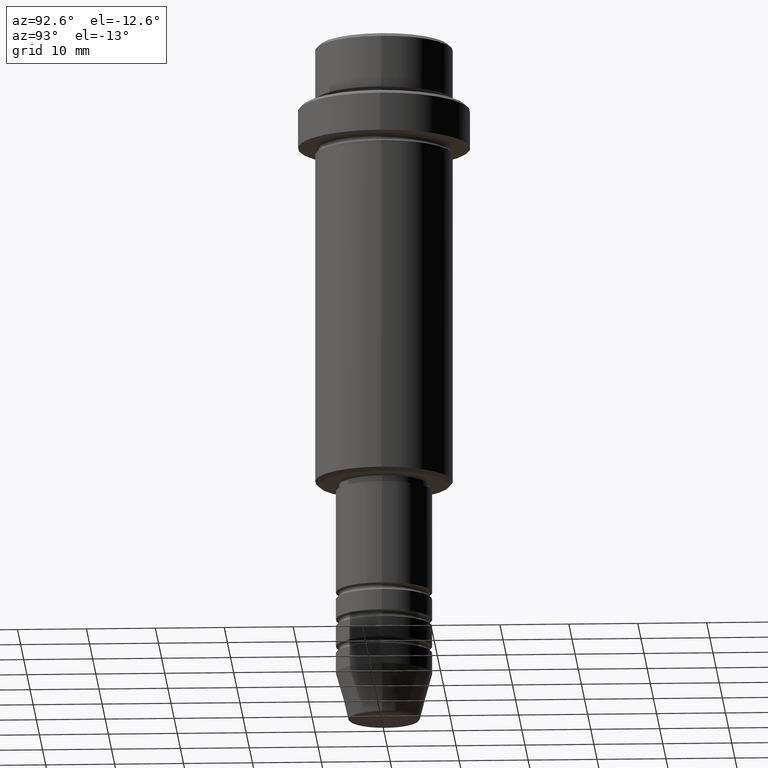
[diagram: clean part render]
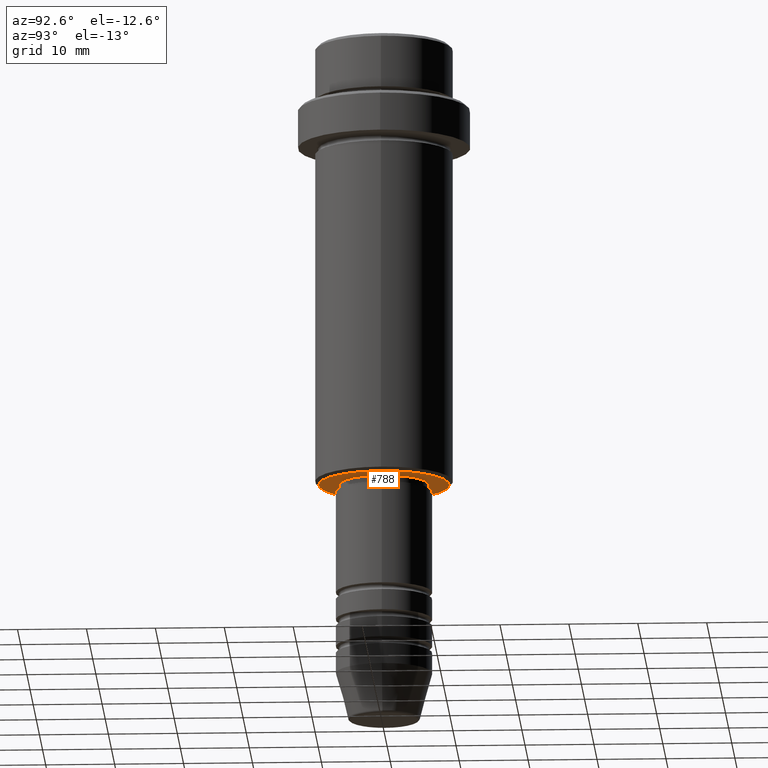
[diagram: same view with one face highlighted and labeled with its STEP entity id]
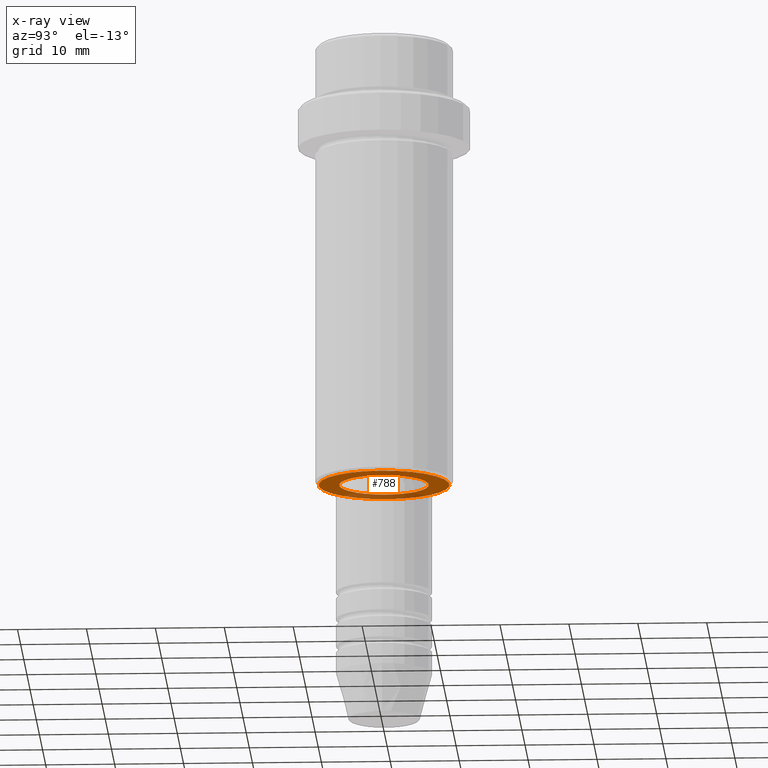
[diagram: x-ray of the same camera — body ghosted, the highlighted face saturated]
A machine part, auxiliary view. The second image highlights one B-rep face of the part: STEP entity #788.
The next image is the same camera in x-ray: the body ghosted, the highlighted face saturated — about 21% of this face is hidden behind the body in this view.
In plain terms, the highlighted planar face has unit normal (0, 0, -1).
Its self-contained STEP definition (entity closure, byte-faithful):
#54 = PLANE ( 'NONE',  #1237 ) ;
#72 = AXIS2_PLACEMENT_3D ( 'NONE', #1052, #1159, #367 ) ;
#77 = CARTESIAN_POINT ( 'NONE',  ( 0.000000000000000000, 10.00000000000000000, -65.00000000000000000 ) ) ;
#126 = AXIS2_PLACEMENT_3D ( 'NONE', #493, #942, #473 ) ;
#161 = EDGE_CURVE ( 'NONE', #1209, #1289, #825, .T. ) ;
#194 = AXIS2_PLACEMENT_3D ( 'NONE', #1155, #848, #378 ) ;
#202 = CARTESIAN_POINT ( 'NONE',  ( -9.500000000000008882, 1.194030629168669864E-15, -65.00000000000000000 ) ) ;
#227 = EDGE_LOOP ( 'NONE', ( #250, #241 ) ) ;
#241 = ORIENTED_EDGE ( 'NONE', *, *, #161, .T. ) ;
#248 = EDGE_CURVE ( 'NONE', #332, #922, #749, .T. ) ;
#250 = ORIENTED_EDGE ( 'NONE', *, *, #1147, .T. ) ;
#262 = DIRECTION ( 'NONE',  ( -1.000000000000000000, 0.000000000000000000, 0.000000000000000000 ) ) ;
#273 = AXIS2_PLACEMENT_3D ( 'NONE', #933, #1154, #262 ) ;
#332 = VERTEX_POINT ( 'NONE', #754 ) ;
#367 = DIRECTION ( 'NONE',  ( 1.000000000000000000, 0.000000000000000000, 0.000000000000000000 ) ) ;
#378 = DIRECTION ( 'NONE',  ( 1.000000000000000000, 0.000000000000000000, 0.000000000000000000 ) ) ;
#473 = DIRECTION ( 'NONE',  ( -1.000000000000000000, 0.000000000000000000, 0.000000000000000000 ) ) ;
#493 = CARTESIAN_POINT ( 'NONE',  ( 0.000000000000000000, 0.000000000000000000, -65.00000000000000000 ) ) ;
#587 = EDGE_LOOP ( 'NONE', ( #905, #1153 ) ) ;
#622 = DIRECTION ( 'NONE',  ( 0.000000000000000000, 0.000000000000000000, -1.000000000000000000 ) ) ;
#738 = CIRCLE ( 'NONE', #273, 9.500000000000008882 ) ;
#749 = CIRCLE ( 'NONE', #126, 9.500000000000008882 ) ;
#754 = CARTESIAN_POINT ( 'NONE',  ( 9.500000000000008882, 0.000000000000000000, -65.00000000000000000 ) ) ;
#763 = CIRCLE ( 'NONE', #72, 6.499999999999994671 ) ;
#788 = ADVANCED_FACE ( 'NONE', ( #1054, #1389 ), #54, .T. ) ;
#825 = CIRCLE ( 'NONE', #194, 6.499999999999994671 ) ;
#848 = DIRECTION ( 'NONE',  ( -0.000000000000000000, -0.000000000000000000, 1.000000000000000000 ) ) ;
#850 = DIRECTION ( 'NONE',  ( -1.000000000000000000, 0.000000000000000000, -0.000000000000000000 ) ) ;
#905 = ORIENTED_EDGE ( 'NONE', *, *, #248, .T. ) ;
#922 = VERTEX_POINT ( 'NONE', #202 ) ;
#933 = CARTESIAN_POINT ( 'NONE',  ( 0.000000000000000000, 0.000000000000000000, -65.00000000000000000 ) ) ;
#942 = DIRECTION ( 'NONE',  ( 0.000000000000000000, 0.000000000000000000, -1.000000000000000000 ) ) ;
#1052 = CARTESIAN_POINT ( 'NONE',  ( 0.000000000000000000, 0.000000000000000000, -65.00000000000000000 ) ) ;
#1054 = FACE_OUTER_BOUND ( 'NONE', #587, .T. ) ;
#1147 = EDGE_CURVE ( 'NONE', #1289, #1209, #763, .T. ) ;
#1153 = ORIENTED_EDGE ( 'NONE', *, *, #1170, .T. ) ;
#1154 = DIRECTION ( 'NONE',  ( 0.000000000000000000, 0.000000000000000000, -1.000000000000000000 ) ) ;
#1155 = CARTESIAN_POINT ( 'NONE',  ( 0.000000000000000000, 0.000000000000000000, -65.00000000000000000 ) ) ;
#1159 = DIRECTION ( 'NONE',  ( -0.000000000000000000, -0.000000000000000000, 1.000000000000000000 ) ) ;
#1164 = CARTESIAN_POINT ( 'NONE',  ( -6.499999999999994671, 7.960204194457788574E-16, -65.00000000000000000 ) ) ;
#1170 = EDGE_CURVE ( 'NONE', #922, #332, #738, .T. ) ;
#1209 = VERTEX_POINT ( 'NONE', #1164 ) ;
#1237 = AXIS2_PLACEMENT_3D ( 'NONE', #77, #622, #850 ) ;
#1257 = CARTESIAN_POINT ( 'NONE',  ( 6.499999999999994671, 0.000000000000000000, -65.00000000000000000 ) ) ;
#1289 = VERTEX_POINT ( 'NONE', #1257 ) ;
#1389 = FACE_BOUND ( 'NONE', #227, .T. ) ;